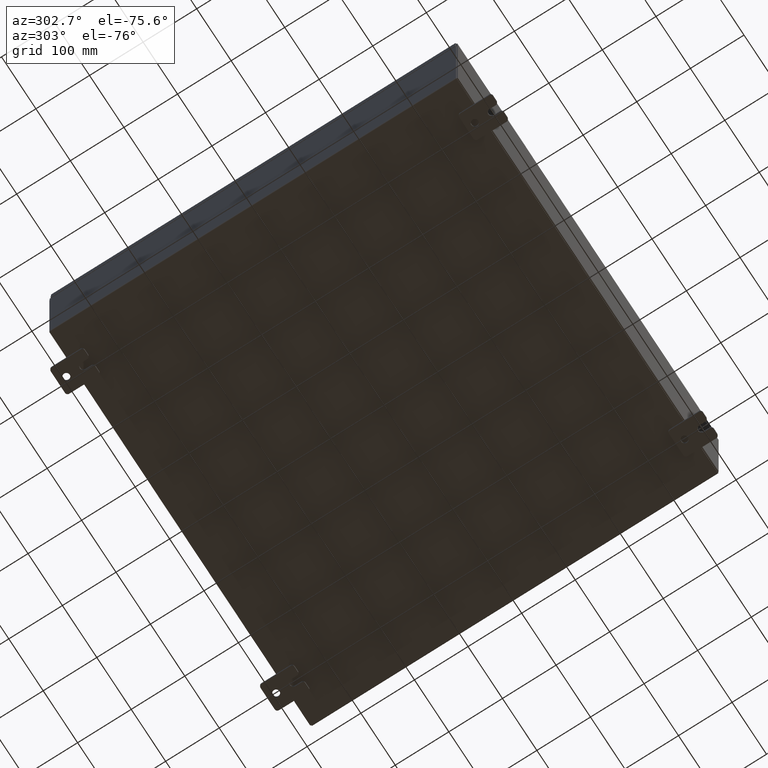
[diagram: clean part render]
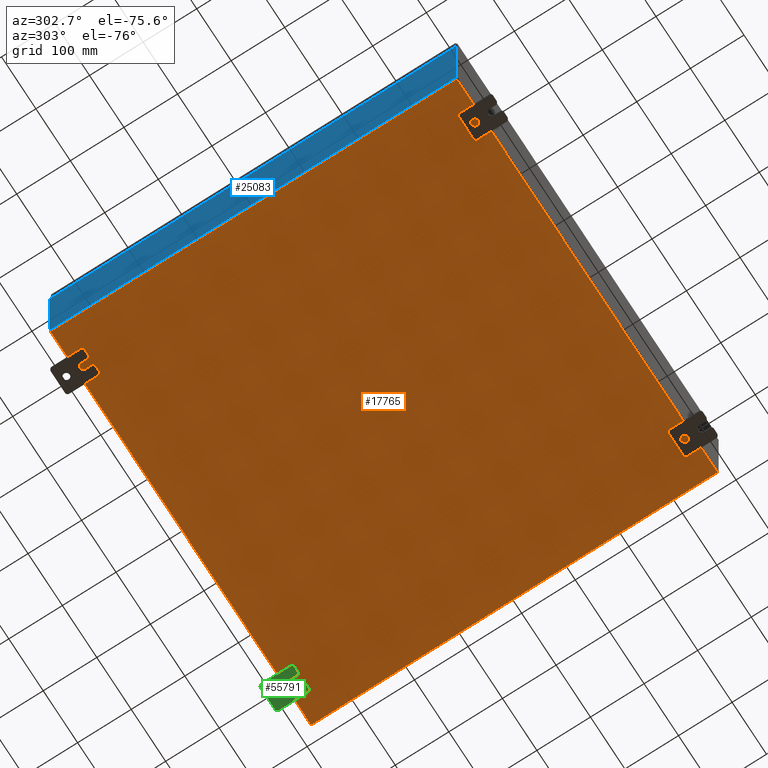
[diagram: same view with three faces highlighted in distinct colors, each labeled with its STEP entity id]
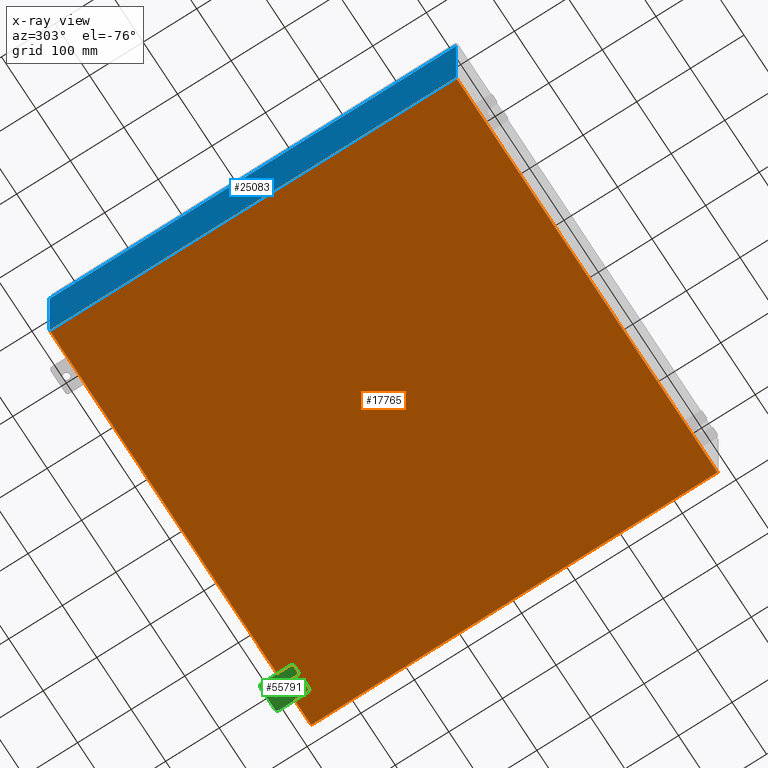
[diagram: x-ray of the same camera — body ghosted, the three highlighted faces saturated]
A machine part, auxiliary view with three faces highlighted in distinct colors.
The next image is the same camera in x-ray (body ghosted, the three faces saturated) — at least one of them is partly hidden behind the body in this view.
Their STEP definitions:

[orange] entity #17765 — the highlighted planar face has unit normal (0, 0, -1).
#3065 = EDGE_CURVE ( 'NONE', #4857, #58659, #23471, .T. ) ;
#4857 = VERTEX_POINT ( 'NONE', #55693 ) ;
#5215 = DIRECTION ( 'NONE',  ( 0.0000000000000000000, 0.0000000000000000000, -1.000000000000000000 ) ) ;
#6495 = LINE ( 'NONE', #18651, #18459 ) ;
#8483 = FACE_OUTER_BOUND ( 'NONE', #9504, .T. ) ;
#9504 = EDGE_LOOP ( 'NONE', ( #17978, #17227, #52610, #14528 ) ) ;
#14528 = ORIENTED_EDGE ( 'NONE', *, *, #53804, .T. ) ;
#15375 = CARTESIAN_POINT ( 'NONE',  ( -14.91230000000000000, 14.92530000000000000, -0.07470000000000000300 ) ) ;
#17227 = ORIENTED_EDGE ( 'NONE', *, *, #3065, .T. ) ;
#17765 = ADVANCED_FACE ( 'NONE', ( #8483 ), #35602, .T. ) ;
#17978 = ORIENTED_EDGE ( 'NONE', *, *, #60094, .F. ) ;
#18459 = VECTOR ( 'NONE', #23755, 39.37007874015748100 ) ;
#18651 = CARTESIAN_POINT ( 'NONE',  ( 14.91230000000000000, 14.92530000000000000, -0.07469999999999994700 ) ) ;
#19082 = VERTEX_POINT ( 'NONE', #52048 ) ;
#23471 = LINE ( 'NONE', #65165, #51914 ) ;
#23755 = DIRECTION ( 'NONE',  ( -0.0000000000000000000, -1.000000000000000000, -0.0000000000000000000 ) ) ;
#26380 = VECTOR ( 'NONE', #33610, 39.37007874015748100 ) ;
#27791 = DIRECTION ( 'NONE',  ( 1.000000000000000000, 0.0000000000000000000, 0.0000000000000000000 ) ) ;
#31140 = LINE ( 'NONE', #53950, #26380 ) ;
#32716 = AXIS2_PLACEMENT_3D ( 'NONE', #45508, #5215, #40665 ) ;
#33610 = DIRECTION ( 'NONE',  ( -1.000000000000000000, -0.0000000000000000000, -0.0000000000000000000 ) ) ;
#35602 = PLANE ( 'NONE',  #32716 ) ;
#37906 = CARTESIAN_POINT ( 'NONE',  ( -15.00000000000000000, -14.92530000000000000, -0.07470000000000000300 ) ) ;
#39598 = LINE ( 'NONE', #37906, #51484 ) ;
#40665 = DIRECTION ( 'NONE',  ( -1.000000000000000000, 0.0000000000000000000, -0.0000000000000000000 ) ) ;
#45508 = CARTESIAN_POINT ( 'NONE',  ( 0.0000000000000000000, 0.0000000000000000000, -0.07470000000000000300 ) ) ;
#46295 = EDGE_CURVE ( 'NONE', #53790, #58659, #31140, .T. ) ;
#51484 = VECTOR ( 'NONE', #27791, 39.37007874015748100 ) ;
#51914 = VECTOR ( 'NONE', #61934, 39.37007874015748100 ) ;
#52048 = CARTESIAN_POINT ( 'NONE',  ( 14.91230000000000000, -14.92530000000000000, -0.07470000000000000300 ) ) ;
#52610 = ORIENTED_EDGE ( 'NONE', *, *, #46295, .F. ) ;
#53790 = VERTEX_POINT ( 'NONE', #58928 ) ;
#53804 = EDGE_CURVE ( 'NONE', #53790, #19082, #6495, .T. ) ;
#53950 = CARTESIAN_POINT ( 'NONE',  ( -15.00000000000000000, 14.92530000000000000, -0.07470000000000000300 ) ) ;
#55693 = CARTESIAN_POINT ( 'NONE',  ( -14.91230000000000000, -14.92530000000000000, -0.07469999999999994700 ) ) ;
#58659 = VERTEX_POINT ( 'NONE', #15375 ) ;
#58928 = CARTESIAN_POINT ( 'NONE',  ( 14.91230000000000000, 14.92530000000000000, -0.07469999999999994700 ) ) ;
#60094 = EDGE_CURVE ( 'NONE', #4857, #19082, #39598, .T. ) ;
#61934 = DIRECTION ( 'NONE',  ( -0.0000000000000000000, 1.000000000000000000, -0.0000000000000000000 ) ) ;
#65165 = CARTESIAN_POINT ( 'NONE',  ( -14.91230000000000000, -14.92530000000000000, -0.07469999999999994700 ) ) ;

[blue] entity #25083 — the highlighted planar face has unit normal (1, 0, 0).
#4095 = VERTEX_POINT ( 'NONE', #33354 ) ;
#10790 = AXIS2_PLACEMENT_3D ( 'NONE', #53250, #22967, #58332 ) ;
#13032 = DIRECTION ( 'NONE',  ( 3.584876173029202900E-015, 0.0000000000000000000, -1.000000000000000000 ) ) ;
#13387 = FACE_OUTER_BOUND ( 'NONE', #46484, .T. ) ;
#13523 = VECTOR ( 'NONE', #42635, 39.37007874015748100 ) ;
#13751 = CARTESIAN_POINT ( 'NONE',  ( -15.00000000000000000, -14.92530000000000000, 0.01299999999999984700 ) ) ;
#14285 = CARTESIAN_POINT ( 'NONE',  ( -15.00000000000002800, 14.92530000000000000, 7.837599999999999200 ) ) ;
#15463 = CARTESIAN_POINT ( 'NONE',  ( -15.00000000000000000, -14.92530000000000000, -5.403395625144962700E-014 ) ) ;
#15611 = CARTESIAN_POINT ( 'NONE',  ( -15.00000000000000000, 14.92530000000000000, 0.01299999999999983600 ) ) ;
#18308 = VERTEX_POINT ( 'NONE', #15611 ) ;
#20850 = CARTESIAN_POINT ( 'NONE',  ( -15.00000000000002800, -14.92530000000000000, 7.837599999999999200 ) ) ;
#22967 = DIRECTION ( 'NONE',  ( 1.000000000000000000, 0.0000000000000000000, 3.584876173029202900E-015 ) ) ;
#24237 = EDGE_CURVE ( 'NONE', #64121, #18308, #37198, .T. ) ;
#25083 = ADVANCED_FACE ( 'NONE', ( #13387 ), #58126, .F. ) ;
#25886 = ORIENTED_EDGE ( 'NONE', *, *, #35597, .T. ) ;
#25963 = VERTEX_POINT ( 'NONE', #13751 ) ;
#27833 = DIRECTION ( 'NONE',  ( -0.0000000000000000000, 1.000000000000000000, -0.0000000000000000000 ) ) ;
#28626 = EDGE_CURVE ( 'NONE', #25963, #18308, #47210, .T. ) ;
#30457 = ORIENTED_EDGE ( 'NONE', *, *, #28626, .F. ) ;
#31304 = ORIENTED_EDGE ( 'NONE', *, *, #24237, .T. ) ;
#33354 = CARTESIAN_POINT ( 'NONE',  ( -15.00000000000002800, -14.92530000000000000, 7.837599999999999200 ) ) ;
#35597 = EDGE_CURVE ( 'NONE', #25963, #4095, #55538, .T. ) ;
#37198 = LINE ( 'NONE', #48423, #65695 ) ;
#39822 = VECTOR ( 'NONE', #61545, 39.37007874015748100 ) ;
#42635 = DIRECTION ( 'NONE',  ( -3.584876173029202900E-015, 0.0000000000000000000, 1.000000000000000000 ) ) ;
#43009 = LINE ( 'NONE', #20850, #39822 ) ;
#43790 = ORIENTED_EDGE ( 'NONE', *, *, #45111, .T. ) ;
#45111 = EDGE_CURVE ( 'NONE', #4095, #64121, #43009, .T. ) ;
#46484 = EDGE_LOOP ( 'NONE', ( #43790, #31304, #30457, #25886 ) ) ;
#47210 = LINE ( 'NONE', #63191, #57542 ) ;
#48423 = CARTESIAN_POINT ( 'NONE',  ( -15.00000000000000000, 14.92530000000000000, -5.403395625144962700E-014 ) ) ;
#53250 = CARTESIAN_POINT ( 'NONE',  ( -15.00000000000000000, 0.0000000000000000000, -5.403395625144962700E-014 ) ) ;
#55538 = LINE ( 'NONE', #15463, #13523 ) ;
#57542 = VECTOR ( 'NONE', #27833, 39.37007874015748100 ) ;
#58126 = PLANE ( 'NONE',  #10790 ) ;
#58332 = DIRECTION ( 'NONE',  ( 3.584876173029202900E-015, 0.0000000000000000000, -1.000000000000000000 ) ) ;
#61545 = DIRECTION ( 'NONE',  ( 0.0000000000000000000, 1.000000000000000000, 0.0000000000000000000 ) ) ;
#63191 = CARTESIAN_POINT ( 'NONE',  ( -15.00000000000000000, 14.92530000000000000, 0.01299999999999984700 ) ) ;
#64121 = VERTEX_POINT ( 'NONE', #14285 ) ;
#65695 = VECTOR ( 'NONE', #13032, 39.37007874015748100 ) ;

[green] entity #55791 — the highlighted planar face has unit normal (0, 0, 1).
#603 = ORIENTED_EDGE ( 'NONE', *, *, #60306, .F. ) ;
#913 = DIRECTION ( 'NONE',  ( 0.0000000000000000000, -1.639108796198553600E-015, -1.000000000000000000 ) ) ;
#953 = LINE ( 'NONE', #52622, #26418 ) ;
#1008 = CIRCLE ( 'NONE', #11854, 0.1900000000000011400 ) ;
#1408 = LINE ( 'NONE', #24460, #38677 ) ;
#3231 = AXIS2_PLACEMENT_3D ( 'NONE', #50018, #17640, #41723 ) ;
#4037 = AXIS2_PLACEMENT_3D ( 'NONE', #53242, #22963, #58329 ) ;
#4211 = DIRECTION ( 'NONE',  ( 0.0000000000000000000, -1.639108796198553600E-015, -1.000000000000000000 ) ) ;
#4394 = DIRECTION ( 'NONE',  ( -6.556435184794182400E-016, -1.000000000000000000, -1.639108796198545600E-016 ) ) ;
#5006 = CARTESIAN_POINT ( 'NONE',  ( -0.1880000000000010000, 0.6249999999999992200, 0.2499999999999999200 ) ) ;
#5202 = CIRCLE ( 'NONE', #4037, 0.1900000000000011100 ) ;
#5437 = ORIENTED_EDGE ( 'NONE', *, *, #29647, .F. ) ;
#5566 = EDGE_CURVE ( 'NONE', #10575, #7801, #12955, .T. ) ;
#5630 = CARTESIAN_POINT ( 'NONE',  ( -0.1879999999999997800, -1.250000000000004700, -0.4400000000000002200 ) ) ;
#5735 = AXIS2_PLACEMENT_3D ( 'NONE', #24916, #60251, #29997 ) ;
#5751 = VERTEX_POINT ( 'NONE', #14208 ) ;
#6004 = CARTESIAN_POINT ( 'NONE',  ( -0.1880000000000005800, -1.250000000000003800, 0.2500000000000005000 ) ) ;
#6236 = DIRECTION ( 'NONE',  ( -0.0000000000000000000, 0.0000000000000000000, -1.000000000000000000 ) ) ;
#6608 = DIRECTION ( 'NONE',  ( 0.0000000000000000000, 1.639108796198553600E-015, 1.000000000000000000 ) ) ;
#6849 = ORIENTED_EDGE ( 'NONE', *, *, #54049, .F. ) ;
#7139 = FACE_OUTER_BOUND ( 'NONE', #15440, .T. ) ;
#7269 = VECTOR ( 'NONE', #913, 39.37007874015748100 ) ;
#7801 = VERTEX_POINT ( 'NONE', #30760 ) ;
#7989 = VERTEX_POINT ( 'NONE', #26730 ) ;
#8071 = EDGE_LOOP ( 'NONE', ( #39192, #26922 ) ) ;
#8410 = CIRCLE ( 'NONE', #44635, 0.1900000000000011100 ) ;
#8438 = EDGE_CURVE ( 'NONE', #17325, #19383, #20811, .T. ) ;
#8777 = VERTEX_POINT ( 'NONE', #5630 ) ;
#8854 = LINE ( 'NONE', #36980, #35842 ) ;
#9604 = VERTEX_POINT ( 'NONE', #58374 ) ;
#9612 = EDGE_CURVE ( 'NONE', #10575, #9604, #953, .T. ) ;
#10043 = CIRCLE ( 'NONE', #35050, 0.2499999999999999200 ) ;
#10245 = DIRECTION ( 'NONE',  ( -1.000000000000000000, -0.0000000000000000000, 0.0000000000000000000 ) ) ;
#10575 = VERTEX_POINT ( 'NONE', #39183 ) ;
#11519 = CARTESIAN_POINT ( 'NONE',  ( -0.1879999999999997800, 1.059999999999993400, -1.000000000000010000 ) ) ;
#11854 = AXIS2_PLACEMENT_3D ( 'NONE', #40593, #10245, #45648 ) ;
#12955 = CIRCLE ( 'NONE', #3231, 0.1900000000000011100 ) ;
#14208 = CARTESIAN_POINT ( 'NONE',  ( -0.1880000000000004700, -1.060000000000003400, -0.2499999999999994400 ) ) ;
#14336 = VERTEX_POINT ( 'NONE', #38293 ) ;
#15440 = EDGE_LOOP ( 'NONE', ( #44011, #60428, #44510, #20919, #6849, #20985, #5437, #58424, #57024, #41867, #603, #44070, #44815, #25248 ) ) ;
#16067 = CARTESIAN_POINT ( 'NONE',  ( -0.1879999999999997800, 0.0000000000000000000, 0.0000000000000000000 ) ) ;
#16758 = DIRECTION ( 'NONE',  ( -1.000000000000000000, -0.0000000000000000000, 0.0000000000000000000 ) ) ;
#17302 = CARTESIAN_POINT ( 'NONE',  ( -0.1880000000000010000, 0.6249999999999992200, -7.703811342100550500E-020 ) ) ;
#17325 = VERTEX_POINT ( 'NONE', #49495 ) ;
#17640 = DIRECTION ( 'NONE',  ( -1.000000000000000000, -0.0000000000000000000, 0.0000000000000000000 ) ) ;
#19383 = VERTEX_POINT ( 'NONE', #38937 ) ;
#20811 = LINE ( 'NONE', #26942, #7269 ) ;
#20919 = ORIENTED_EDGE ( 'NONE', *, *, #5566, .T. ) ;
#20985 = ORIENTED_EDGE ( 'NONE', *, *, #64901, .T. ) ;
#21512 = CIRCLE ( 'NONE', #37683, 0.1900000000000011100 ) ;
#22433 = DIRECTION ( 'NONE',  ( 0.0000000000000000000, 0.0000000000000000000, -1.000000000000000000 ) ) ;
#22963 = DIRECTION ( 'NONE',  ( -1.000000000000000000, -0.0000000000000000000, 0.0000000000000000000 ) ) ;
#23800 = VERTEX_POINT ( 'NONE', #11519 ) ;
#24072 = DIRECTION ( 'NONE',  ( -1.000000000000000000, 6.523827964459549700E-016, 5.163192708025532000E-017 ) ) ;
#24460 = CARTESIAN_POINT ( 'NONE',  ( -0.1879999999999997800, -1.250000000000002200, 0.9999999999999992200 ) ) ;
#24461 = CARTESIAN_POINT ( 'NONE',  ( -0.1880000000000010000, 0.6249999999999992200, -7.703811342100550500E-020 ) ) ;
#24916 = CARTESIAN_POINT ( 'NONE',  ( -0.1879999999999997800, -1.060000000000003400, -0.4400000000000005000 ) ) ;
#25116 = VERTEX_POINT ( 'NONE', #53473 ) ;
#25248 = ORIENTED_EDGE ( 'NONE', *, *, #32532, .T. ) ;
#26369 = CARTESIAN_POINT ( 'NONE',  ( -0.1880000000000010000, 0.6249999999999992200, -0.2499999999999999200 ) ) ;
#26418 = VECTOR ( 'NONE', #33184, 39.37007874015748100 ) ;
#26419 = AXIS2_PLACEMENT_3D ( 'NONE', #17302, #52710, #22433 ) ;
#26730 = CARTESIAN_POINT ( 'NONE',  ( -0.1879999999999997800, -1.060000000000004500, -1.000000000000006400 ) ) ;
#26852 = EDGE_CURVE ( 'NONE', #8777, #5751, #51276, .T. ) ;
#26922 = ORIENTED_EDGE ( 'NONE', *, *, #27651, .T. ) ;
#26942 = CARTESIAN_POINT ( 'NONE',  ( -0.1879999999999997800, -1.250000000000002200, 0.9999999999999992200 ) ) ;
#27651 = EDGE_CURVE ( 'NONE', #61051, #62366, #10043, .T. ) ;
#28646 = EDGE_CURVE ( 'NONE', #7989, #25116, #5202, .T. ) ;
#29555 = DIRECTION ( 'NONE',  ( 0.0000000000000000000, 0.0000000000000000000, -1.000000000000000000 ) ) ;
#29647 = EDGE_CURVE ( 'NONE', #7989, #23800, #54318, .T. ) ;
#29653 = DIRECTION ( 'NONE',  ( -1.000000000000000000, -0.0000000000000000000, 0.0000000000000000000 ) ) ;
#29997 = DIRECTION ( 'NONE',  ( 0.0000000000000000000, 0.0000000000000000000, -1.000000000000000000 ) ) ;
#30760 = CARTESIAN_POINT ( 'NONE',  ( -0.1879999999999997800, 1.249999999999997300, 0.8099999999999935000 ) ) ;
#30929 = CARTESIAN_POINT ( 'NONE',  ( -0.1880000000000001900, -0.6249999999999992200, 0.2500000000000005000 ) ) ;
#31752 = LINE ( 'NONE', #44904, #43547 ) ;
#32359 = CARTESIAN_POINT ( 'NONE',  ( -0.1879999999999997800, -1.250000000000005600, -1.000000000000006200 ) ) ;
#32532 = EDGE_CURVE ( 'NONE', #35918, #19383, #1008, .T. ) ;
#33184 = DIRECTION ( 'NONE',  ( 0.0000000000000000000, -1.000000000000000000, 1.639108796198558100E-015 ) ) ;
#34138 = FACE_BOUND ( 'NONE', #8071, .T. ) ;
#35050 = AXIS2_PLACEMENT_3D ( 'NONE', #24461, #59824, #29555 ) ;
#35842 = VECTOR ( 'NONE', #6608, 39.37007874015748100 ) ;
#35918 = VERTEX_POINT ( 'NONE', #40418 ) ;
#36620 = DIRECTION ( 'NONE',  ( 1.000000000000000000, 0.0000000000000000000, -0.0000000000000000000 ) ) ;
#36980 = CARTESIAN_POINT ( 'NONE',  ( -0.1879999999999997800, 1.249999999999994200, -1.000000000000010400 ) ) ;
#37294 = EDGE_CURVE ( 'NONE', #8777, #25116, #1408, .T. ) ;
#37683 = AXIS2_PLACEMENT_3D ( 'NONE', #47040, #16758, #52154 ) ;
#38293 = CARTESIAN_POINT ( 'NONE',  ( -0.1880000000000001900, -0.6249999999999992200, -0.2499999999999998600 ) ) ;
#38677 = VECTOR ( 'NONE', #4211, 39.37007874015748100 ) ;
#38937 = CARTESIAN_POINT ( 'NONE',  ( -0.1879999999999997800, -1.250000000000003100, 0.4400000000000020000 ) ) ;
#39183 = CARTESIAN_POINT ( 'NONE',  ( -0.1879999999999997800, 1.059999999999996500, 0.9999999999999953400 ) ) ;
#39192 = ORIENTED_EDGE ( 'NONE', *, *, #49418, .T. ) ;
#40089 = AXIS2_PLACEMENT_3D ( 'NONE', #16067, #36620, #6236 ) ;
#40418 = CARTESIAN_POINT ( 'NONE',  ( -0.1880000000000004700, -1.060000000000002100, 0.2500000000000005000 ) ) ;
#40593 = CARTESIAN_POINT ( 'NONE',  ( -0.1879999999999997800, -1.060000000000002100, 0.4400000000000016700 ) ) ;
#40800 = VERTEX_POINT ( 'NONE', #45533 ) ;
#40809 = VECTOR ( 'NONE', #47556, 39.37007874015748100 ) ;
#41723 = DIRECTION ( 'NONE',  ( 0.0000000000000000000, 0.0000000000000000000, -1.000000000000000000 ) ) ;
#41867 = ORIENTED_EDGE ( 'NONE', *, *, #26852, .T. ) ;
#43547 = VECTOR ( 'NONE', #4394, 39.37007874015748100 ) ;
#43663 = EDGE_CURVE ( 'NONE', #55682, #14336, #61258, .T. ) ;
#44011 = ORIENTED_EDGE ( 'NONE', *, *, #8438, .F. ) ;
#44036 = EDGE_CURVE ( 'NONE', #35918, #55682, #49432, .T. ) ;
#44070 = ORIENTED_EDGE ( 'NONE', *, *, #43663, .F. ) ;
#44510 = ORIENTED_EDGE ( 'NONE', *, *, #9612, .F. ) ;
#44635 = AXIS2_PLACEMENT_3D ( 'NONE', #59911, #29653, #64984 ) ;
#44815 = ORIENTED_EDGE ( 'NONE', *, *, #44036, .F. ) ;
#44904 = CARTESIAN_POINT ( 'NONE',  ( -0.1880000000000001900, -0.6249999999999992200, -0.2499999999999993900 ) ) ;
#45533 = CARTESIAN_POINT ( 'NONE',  ( -0.1879999999999997800, 1.249999999999994700, -0.8100000000000092700 ) ) ;
#45648 = DIRECTION ( 'NONE',  ( 0.0000000000000000000, 0.0000000000000000000, -1.000000000000000000 ) ) ;
#46521 = DIRECTION ( 'NONE',  ( 6.556435184794182400E-016, 1.000000000000000000, 0.0000000000000000000 ) ) ;
#46535 = PLANE ( 'NONE',  #40089 ) ;
#47040 = CARTESIAN_POINT ( 'NONE',  ( -0.1879999999999997800, -1.060000000000001600, 0.8099999999999978300 ) ) ;
#47556 = DIRECTION ( 'NONE',  ( 0.0000000000000000000, 1.000000000000000000, -1.639108796198558100E-015 ) ) ;
#47841 = VECTOR ( 'NONE', #46521, 39.37007874015748100 ) ;
#49044 = CIRCLE ( 'NONE', #26419, 0.2499999999999999200 ) ;
#49418 = EDGE_CURVE ( 'NONE', #62366, #61051, #49044, .T. ) ;
#49432 = LINE ( 'NONE', #6004, #47841 ) ;
#49495 = CARTESIAN_POINT ( 'NONE',  ( -0.1879999999999997800, -1.250000000000002400, 0.8099999999999980500 ) ) ;
#49559 = AXIS2_PLACEMENT_3D ( 'NONE', #54381, #24072, #59437 ) ;
#50018 = CARTESIAN_POINT ( 'NONE',  ( -0.1879999999999997800, 1.059999999999996300, 0.8099999999999938400 ) ) ;
#51276 = CIRCLE ( 'NONE', #5735, 0.1900000000000011100 ) ;
#52154 = DIRECTION ( 'NONE',  ( 0.0000000000000000000, 7.189073667537492800E-016, -1.000000000000000000 ) ) ;
#52622 = CARTESIAN_POINT ( 'NONE',  ( -0.1879999999999997800, 1.249999999999997600, 0.9999999999999951200 ) ) ;
#52710 = DIRECTION ( 'NONE',  ( 1.000000000000000000, -0.0000000000000000000, -5.163192708025532000E-017 ) ) ;
#53242 = CARTESIAN_POINT ( 'NONE',  ( -0.1879999999999997800, -1.060000000000004100, -0.8100000000000050500 ) ) ;
#53473 = CARTESIAN_POINT ( 'NONE',  ( -0.1879999999999997800, -1.250000000000005300, -0.8100000000000047200 ) ) ;
#54049 = EDGE_CURVE ( 'NONE', #40800, #7801, #8854, .T. ) ;
#54318 = LINE ( 'NONE', #32359, #40809 ) ;
#54381 = CARTESIAN_POINT ( 'NONE',  ( -0.1880000000000001900, -0.6249999999999992200, 6.829619984160658000E-017 ) ) ;
#55682 = VERTEX_POINT ( 'NONE', #30929 ) ;
#55791 = ADVANCED_FACE ( 'NONE', ( #34138, #7139 ), #46535, .F. ) ;
#57024 = ORIENTED_EDGE ( 'NONE', *, *, #37294, .F. ) ;
#58329 = DIRECTION ( 'NONE',  ( 0.0000000000000000000, 0.0000000000000000000, -1.000000000000000000 ) ) ;
#58374 = CARTESIAN_POINT ( 'NONE',  ( -0.1879999999999997800, -1.060000000000001200, 0.9999999999999988900 ) ) ;
#58424 = ORIENTED_EDGE ( 'NONE', *, *, #28646, .T. ) ;
#59390 = EDGE_CURVE ( 'NONE', #17325, #9604, #21512, .T. ) ;
#59437 = DIRECTION ( 'NONE',  ( -6.829619984160660000E-016, -1.000000000000000000, 0.0000000000000000000 ) ) ;
#59824 = DIRECTION ( 'NONE',  ( 1.000000000000000000, -0.0000000000000000000, -5.163192708025532000E-017 ) ) ;
#59911 = CARTESIAN_POINT ( 'NONE',  ( -0.1879999999999997800, 1.059999999999993600, -0.8100000000000089400 ) ) ;
#60251 = DIRECTION ( 'NONE',  ( -1.000000000000000000, -0.0000000000000000000, 0.0000000000000000000 ) ) ;
#60306 = EDGE_CURVE ( 'NONE', #14336, #5751, #31752, .T. ) ;
#60428 = ORIENTED_EDGE ( 'NONE', *, *, #59390, .T. ) ;
#61051 = VERTEX_POINT ( 'NONE', #5006 ) ;
#61258 = CIRCLE ( 'NONE', #49559, 0.2499999999999999200 ) ;
#62366 = VERTEX_POINT ( 'NONE', #26369 ) ;
#64901 = EDGE_CURVE ( 'NONE', #40800, #23800, #8410, .T. ) ;
#64984 = DIRECTION ( 'NONE',  ( 0.0000000000000000000, 0.0000000000000000000, -1.000000000000000000 ) ) ;